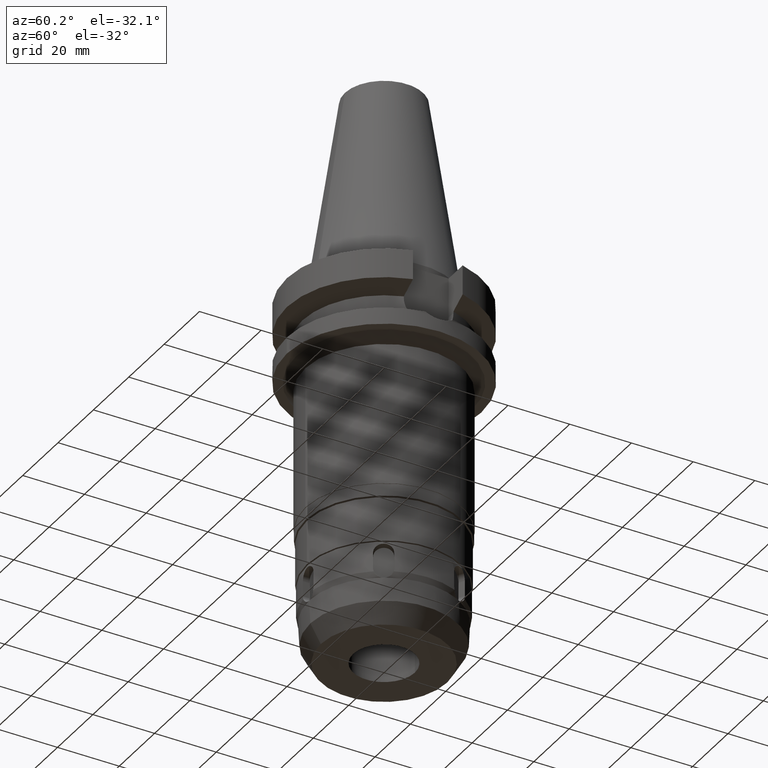
[diagram: clean part render]
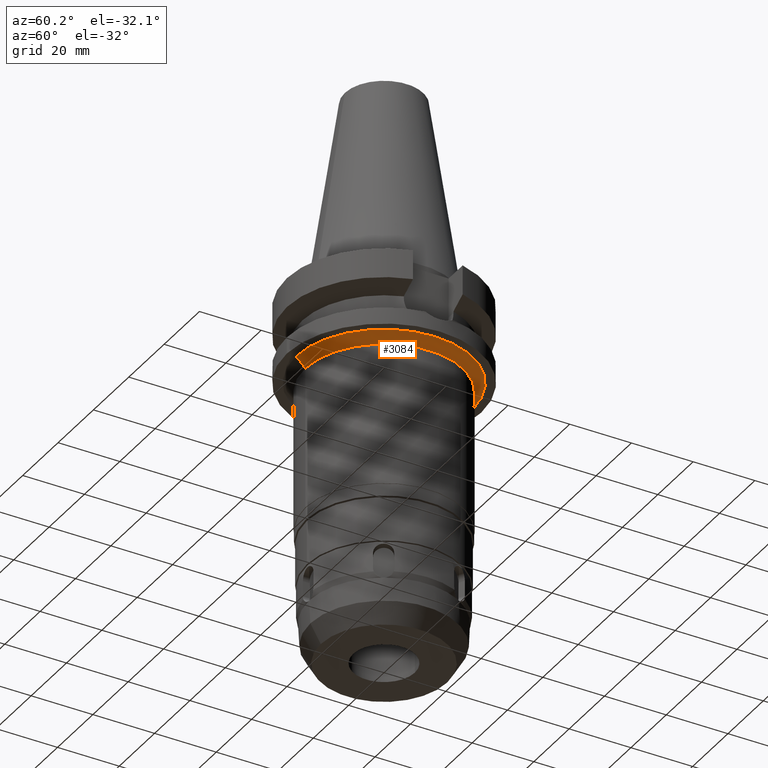
[diagram: same view with one face highlighted and labeled with its STEP entity id]
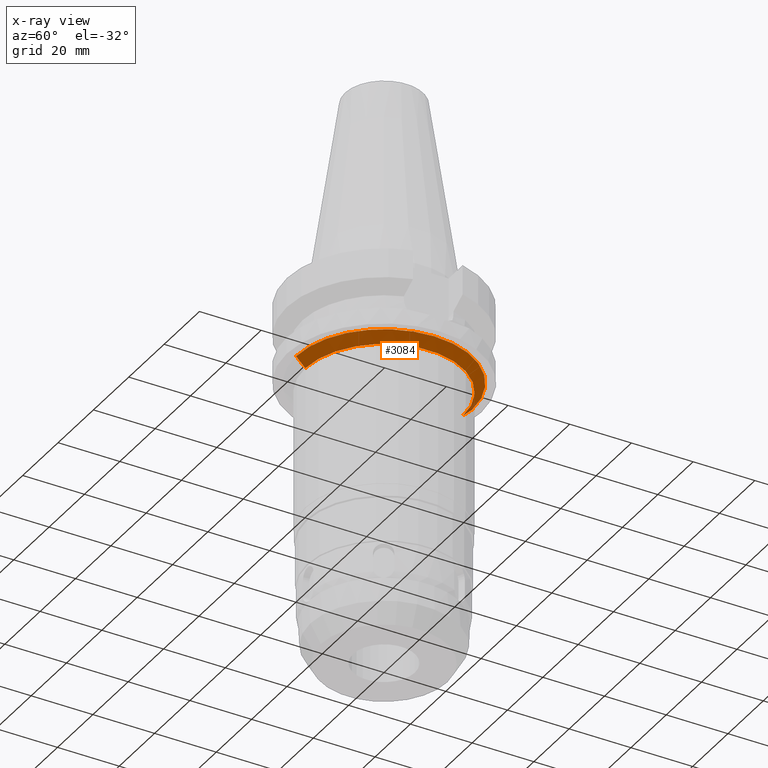
[diagram: x-ray of the same camera — body ghosted, the highlighted face saturated]
A machine part, auxiliary view. The second image highlights one B-rep face of the part: STEP entity #3084.
The next image is the same camera in x-ray: the body ghosted, the highlighted face saturated — about 1% of this face is hidden behind the body in this view.
In plain terms, the highlighted conical surface has half-angle 45 deg.
Its self-contained STEP definition (entity closure, byte-faithful):
#651=CARTESIAN_POINT('',(0.E0,0.E0,-2.7E1));
#652=DIRECTION('',(0.E0,0.E0,-1.E0));
#653=DIRECTION('',(0.E0,1.E0,0.E0));
#654=AXIS2_PLACEMENT_3D('',#651,#652,#653);
#659=DIRECTION('',(0.E0,7.071067811865E-1,-7.071067811865E-1));
#660=VECTOR('',#659,4.242640687119E0);
#661=CARTESIAN_POINT('',(0.E0,-2.85E1,-2.7E1));
#662=LINE('',#661,#660);
#674=DIRECTION('',(0.E0,-7.071067811865E-1,-7.071067811866E-1));
#675=VECTOR('',#674,4.242640687119E0);
#676=CARTESIAN_POINT('',(0.E0,2.85E1,-2.7E1));
#677=LINE('',#676,#675);
#681=CARTESIAN_POINT('',(0.E0,0.E0,-3.E1));
#682=DIRECTION('',(0.E0,0.E0,-1.E0));
#683=DIRECTION('',(0.E0,1.E0,0.E0));
#684=AXIS2_PLACEMENT_3D('',#681,#682,#683);
#2485=CARTESIAN_POINT('',(0.E0,2.55E1,-3.E1));
#2486=VERTEX_POINT('',#2485);
#2487=CARTESIAN_POINT('',(0.E0,-2.55E1,-3.E1));
#2488=VERTEX_POINT('',#2487);
#2489=CARTESIAN_POINT('',(0.E0,2.85E1,-2.7E1));
#2490=VERTEX_POINT('',#2489);
#2491=CARTESIAN_POINT('',(0.E0,-2.85E1,-2.7E1));
#2492=VERTEX_POINT('',#2491);
#3072=CARTESIAN_POINT('',(0.E0,0.E0,-2.85E1));
#3073=DIRECTION('',(0.E0,0.E0,1.E0));
#3074=DIRECTION('',(0.E0,1.E0,0.E0));
#3075=AXIS2_PLACEMENT_3D('',#3072,#3073,#3074);
#3076=CONICAL_SURFACE('',#3075,2.7E1,4.5E1);
#3077=ORIENTED_EDGE('',*,*,#3062,.T.);
#3079=ORIENTED_EDGE('',*,*,#3078,.T.);
#3080=ORIENTED_EDGE('',*,*,#3065,.F.);
#3081=ORIENTED_EDGE('',*,*,#3052,.F.);
#3082=EDGE_LOOP('',(#3077,#3079,#3080,#3081));
#3083=FACE_OUTER_BOUND('',#3082,.F.);
#655=CIRCLE('',#654,2.85E1);
#685=CIRCLE('',#684,2.55E1);
#3052=EDGE_CURVE('',#2490,#2492,#655,.T.);
#3062=EDGE_CURVE('',#2490,#2486,#677,.T.);
#3065=EDGE_CURVE('',#2492,#2488,#662,.T.);
#3078=EDGE_CURVE('',#2486,#2488,#685,.T.);
#3084=ADVANCED_FACE('',(#3083),#3076,.T.);